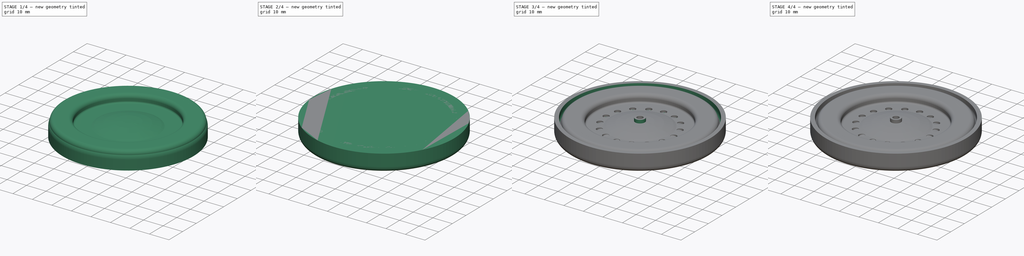
[diagram: build sequence overview — one tinted view per stage of 4, left to right]
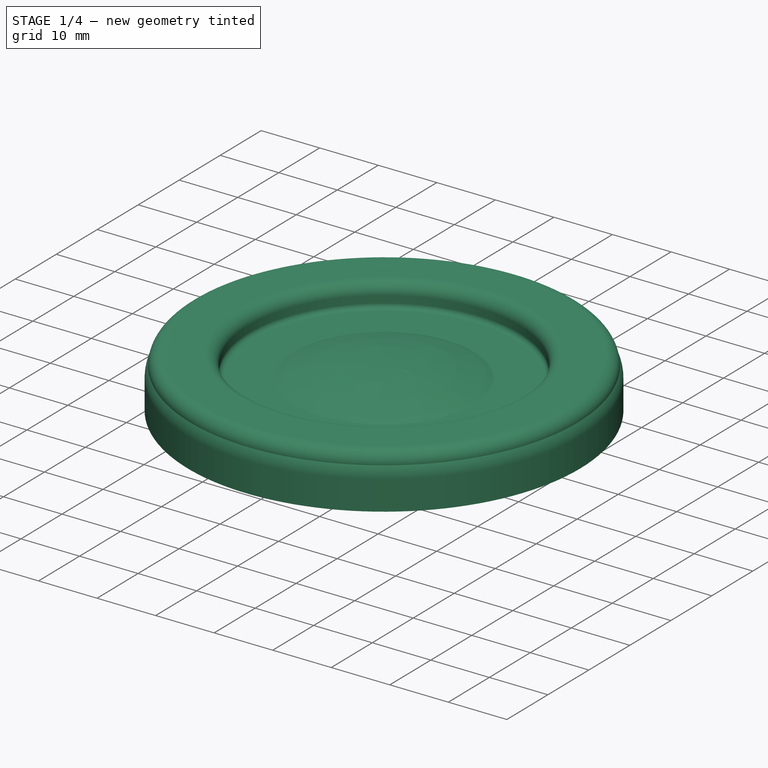
[diagram: stage 1 of 4 — iso view after this stage's code; geometry added in this stage tinted green]
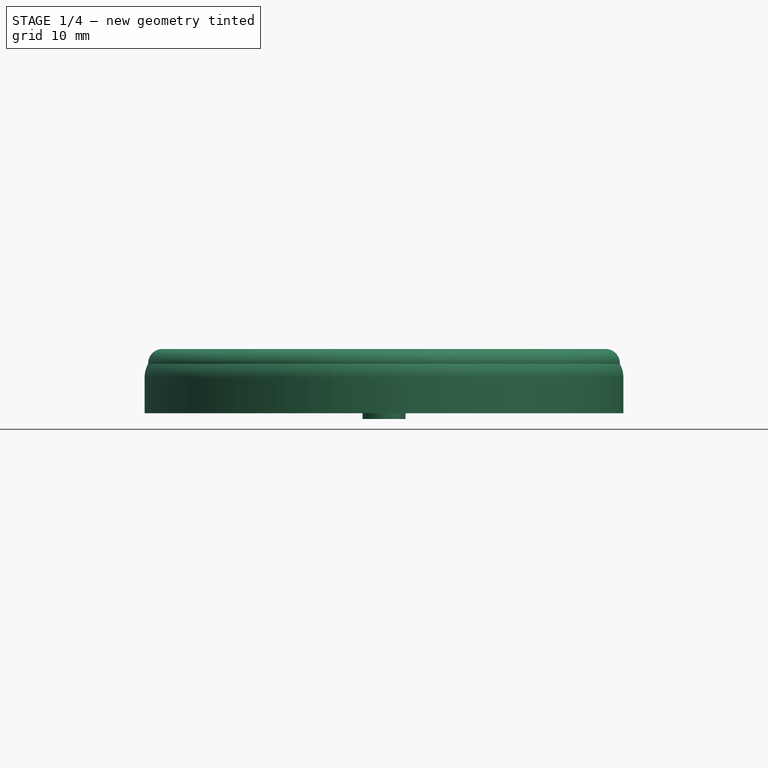
[diagram: stage 1 of 4 — front view after this stage's code; geometry added in this stage tinted green]
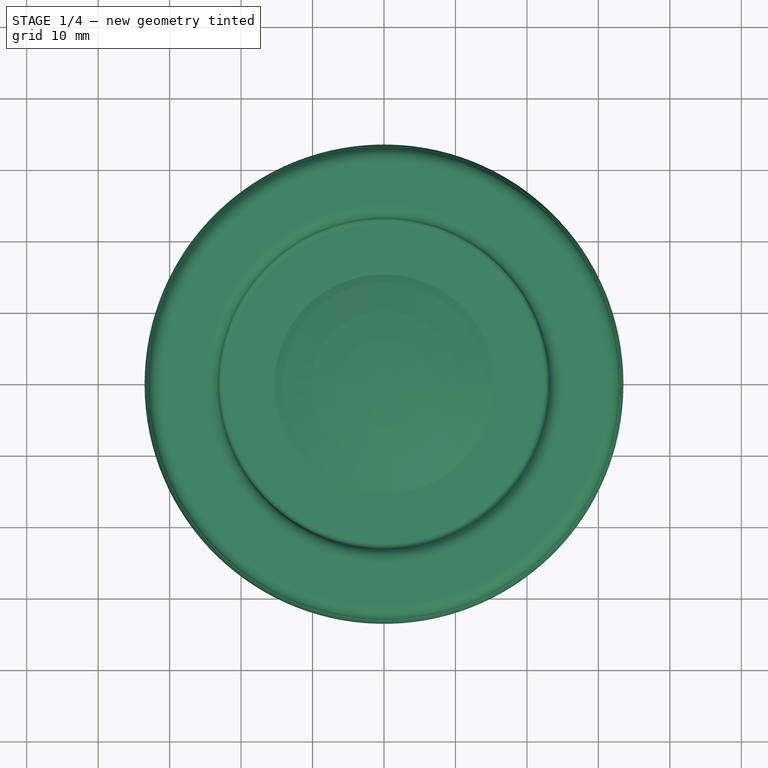
[diagram: stage 1 of 4 — top view after this stage's code; geometry added in this stage tinted green]
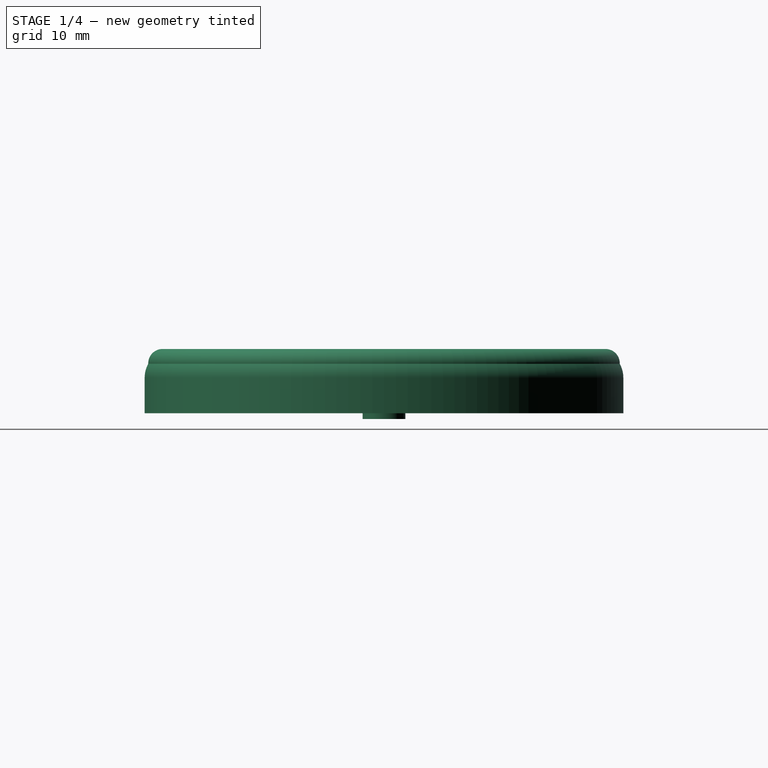
[diagram: stage 1 of 4 — right view after this stage's code; geometry added in this stage tinted green]
FCSTD DOCUMENT  (FreeCAD 0.22R37841 (Git))
Label: Rueda
License: All rights reserved
LicenseURL: http://en.wikipedia.org/wiki/All_rights_reserved
objects: Sketcher::SketchObject×10, PartDesign::Fillet×6, PartDesign::Pocket×4, PartDesign::Body×3, PartDesign::Revolution×2, PartDesign::Pad×1
note: 39 computed .brp shape members not serialized (recipe doc carries the construction recipe); baked Part::Feature solids carry a one-line shape summary decoded from their .brp

FEATURE [PartDesign::Body] Body
  AllowCompound = false
  Group = -> [Sketch,Sketch001,Pad,Fillet,Pocket,Fillet001,Sketch002,Pocket001,Fillet002,Sketch003,Sketch004,Pocket002,Fillet003,Fillet004]
  Origin = -> Origin
  Tip = -> Fillet004
FEATURE [Sketcher::SketchObject] Sketch005
  AttachmentSupport = -> [XY_Plane001]
  FullyConstrained = false
  MapMode = 5
  sketch-geometry (6):
    g0: Circle CenterX=0 CenterY=0 CenterZ=0 NormalX=0 NormalY=0 NormalZ=1 AngleXU=0 Radius=32.5
    g1: Circle CenterX=0 CenterY=0 CenterZ=0 NormalX=0 NormalY=0 NormalZ=1 AngleXU=0 Radius=33.5
    g2: Circle CenterX=0 CenterY=0 CenterZ=0 NormalX=0 NormalY=0 NormalZ=1 AngleXU=0 Radius=27.5
    g3: LineSegment StartX=0 StartY=-27.5 StartZ=0 EndX=0 EndY=-33.5 EndZ=0
    g4: Circle CenterX=0 CenterY=0 CenterZ=0 NormalX=0 NormalY=0 NormalZ=1 AngleXU=0 Radius=3
    g5: Circle CenterX=0 CenterY=0 CenterZ=0 NormalX=0 NormalY=0 NormalZ=1 AngleXU=0 Radius=1.5
  constraints (13):
    c: Diameter(g0) = 65
    c: Coincident(g0,g-1)
    c: Diameter(g1) = 67
    c: Coincident(g1,g0)
    c: Coincident(g2,g0)
    c: PointOnObject(g3,g1)
    c: Vertical(g3)
    c: PointOnObject(g3,g2)
    c: Distance(g3) = 6
    c: Diameter(g4) = 6
    c: Coincident(g4,g0)
    c: Diameter(g5) = 3
    c: Coincident(g5,g0)
FEATURE [Sketcher::SketchObject] Sketch006
  AttachmentSupport = -> [XY_Plane001]
  FullyConstrained = false
  MapMode = 5
  sketch-geometry (6):
    g0: Circle CenterX=0 CenterY=0 CenterZ=0 NormalX=0 NormalY=0 NormalZ=1 AngleXU=0 Radius=32.5
    g1: Circle CenterX=0 CenterY=0 CenterZ=0 NormalX=0 NormalY=0 NormalZ=1 AngleXU=0 Radius=33.5
    g2: Circle CenterX=0 CenterY=0 CenterZ=0 NormalX=0 NormalY=0 NormalZ=1 AngleXU=0 Radius=27.5
    g3: LineSegment StartX=0 StartY=-27.5 StartZ=0 EndX=0 EndY=-33.5 EndZ=0
    g4: Circle CenterX=0 CenterY=0 CenterZ=0 NormalX=0 NormalY=0 NormalZ=1 AngleXU=0 Radius=3
    g5: Circle CenterX=0 CenterY=0 CenterZ=0 NormalX=0 NormalY=0 NormalZ=1 AngleXU=0 Radius=1.5
  constraints (13):
    c: Diameter(g0) = 65
    c: Coincident(g0,g-1)
    c: Diameter(g1) = 67
    c: Coincident(g1,g0)
    c: Coincident(g2,g0)
    c: PointOnObject(g3,g1)
    c: Vertical(g3)
    c: PointOnObject(g3,g2)
    c: Distance(g3) = 6
    c: Diameter(g4) = 6
    c: Coincident(g4,g0)
    c: Diameter(g5) = 3
    c: Coincident(g5,g0)
FEATURE [Sketcher::SketchObject] Sketch007
  AttachmentSupport = -> [XZ_Plane001]
  FullyConstrained = false
  MapMode = 5
  Placement = pos=(0,0,0) rot=(1,0,0;1.5708rad)
  sketch-geometry (32):
    g0: LineSegment StartX=33.5 StartY=0 StartZ=0 EndX=33.5 EndY=4.98884 EndZ=0
    g1: LineSegment StartX=29.5 StartY=8.98884 StartZ=0 EndX=25.1149 EndY=8.98884 EndZ=0
    g2: ArcOfCircle CenterX=29.5 CenterY=4.98884 CenterZ=0 NormalX=0 NormalY=0 NormalZ=1 AngleXU=0 Radius=4 StartAngle=0 EndAngle=1.5708
    g3: GeomPoint X=33.5 Y=8.98884 Z=0
    g4: LineSegment StartX=23.1212 StartY=6.99513 StartZ=0 EndX=23.1212 EndY=5.79644 EndZ=0
    g5: LineSegment StartX=22.3136 StartY=4.98884 StartZ=0 EndX=8.42517 EndY=4.98884 EndZ=0
    g6: ArcOfCircle CenterX=25.1149 CenterY=6.99513 CenterZ=0 NormalX=0 NormalY=0 NormalZ=1 AngleXU=0 Radius=1.99371 StartAngle=1.5708 EndAngle=3.14159
    g7: GeomPoint X=23.1212 Y=8.98884 Z=0
    g8: ArcOfCircle CenterX=22.3136 CenterY=5.79644 CenterZ=0 NormalX=0 NormalY=0 NormalZ=1 AngleXU=0 Radius=0.807599 StartAngle=4.71239 EndAngle=6.28319
    g9: GeomPoint X=23.1212 Y=4.98884 Z=0
    g10: ArcOfCircle CenterX=0.0175288 CenterY=-10.1443 CenterZ=0 NormalX=0 NormalY=0 NormalZ=1 AngleXU=0 Radius=16.8274 StartAngle=1.17309 EndAngle=1.57184
    g11: ArcOfCircle CenterX=8.42517 CenterY=9.86936 CenterZ=0 NormalX=0 NormalY=0 NormalZ=1 AngleXU=0 Radius=4.88052 StartAngle=4.31468 EndAngle=4.71239
    g12: LineSegment StartX=31.4929 StartY=4.99887 StartZ=0 EndX=31.4929 EndY=4.97881 EndZ=0
    g13: LineSegment StartX=29.5 StartY=5 StartZ=0 EndX=30.9035 EndY=6.40383 EndZ=0
    g14: ArcOfCircle CenterX=29.5 CenterY=4.98884 CenterZ=0 NormalX=0 NormalY=0 NormalZ=1 AngleXU=0 Radius=1.99296 StartAngle=0.00503217 EndAngle=1.58229
    g15: LineSegment StartX=8.42518 StartY=3 StartZ=0 EndX=22.3086 EndY=2.99513 EndZ=0
    g16: ArcOfCircle CenterX=22.3136 CenterY=5.79644 CenterZ=0 NormalX=0 NormalY=0 NormalZ=1 AngleXU=0 Radius=2.80131 StartAngle=4.71061 EndAngle=6.28496
    g17: ArcOfCircle CenterX=25.7737 CenterY=6.32281 CenterZ=0 NormalX=0 NormalY=0 NormalZ=1 AngleXU=0 Radius=0.658857 StartAngle=1.5708 EndAngle=3.14159
    g18: ArcOfCircle CenterX=-1.3106 CenterY=-18.7527 CenterZ=0 NormalX=0 NormalY=0 NormalZ=1 AngleXU=0 Radius=23.4835 StartAngle=1.22997 EndAngle=1.3644
    g19: LineSegment StartX=31.4929 StartY=4.97881 StartZ=0 EndX=31.4929 EndY=0 EndZ=0
    g20: LineSegment StartX=31.4929 StartY=0 StartZ=0 EndX=33.5 EndY=0 EndZ=0
    g21: LineSegment StartX=29.4771 StartY=6.98167 StartZ=0 EndX=25.7737 EndY=6.98167 EndZ=0
    g22: LineSegment StartX=25.1149 StartY=6.32281 StartZ=0 EndX=25.1149 EndY=5.80141 EndZ=0
    g23: LineSegment StartX=-1.2e-15 StartY=4.19428 StartZ=0 EndX=-1.2e-15 EndY=6.68312 EndZ=0
    g24: ArcOfCircle CenterX=8.48909 CenterY=8.18652 CenterZ=0 NormalX=0 NormalY=0 NormalZ=1 AngleXU=0 Radius=5.18691 StartAngle=4.327 EndAngle=4.70007
    g25: ArcOfCircle CenterX=3.41659 CenterY=3.82472 CenterZ=0 NormalX=0 NormalY=0 NormalZ=1 AngleXU=0 Radius=0.416592 StartAngle=1.3644 EndAngle=3.14159
    g26: LineSegment StartX=-1.2e-15 StartY=4.19428 StartZ=0 EndX=1.50042 EndY=4.19428 EndZ=0
    g27: LineSegment StartX=3 StartY=3.82472 StartZ=0 EndX=3 EndY=-0.805717 EndZ=0
    g28: LineSegment StartX=1.50042 StartY=-0.805717 StartZ=0 EndX=3 EndY=-0.805717 EndZ=0
    g29: LineSegment StartX=1.50042 StartY=-0.805717 StartZ=0 EndX=1.50042 EndY=4.19428 EndZ=0
    g30: LineSegment StartX=33.5 StartY=4.98884 StartZ=0 EndX=33.5 EndY=11.9888 EndZ=0
    g31: LineSegment StartX=23.11 StartY=6.99513 StartZ=0 EndX=27.5 EndY=11.9961 EndZ=0
  constraints (59):
    c: Horizontal(g1)
    c: Vertical(g0)
    c: Distance(g0,g-1) = 33.5
    c: PointOnObject(g3,g1)
    c: PointOnObject(g3,g0)
    c: Tangent(g1,g2) = -1.5708
    c: Tangent(g0,g2) = -1.5708
    c: Radius(g2) = 4
    c: Distance(g9,g7) = 4
    c: Vertical(g4)
    c: Horizontal(g5)
    c: PointOnObject(g7,g1)
    c: PointOnObject(g7,g4)
    c: Tangent(g1,g6) = -1.5708
    c: Tangent(g4,g6) = -1.5708
    c: PointOnObject(g9,g4)
    c: PointOnObject(g9,g5)
    c: Tangent(g4,g8) = 1.5708
    c: Tangent(g5,g8) = 1.5708
    c: PointOnObject(g10,g-2)
    c: Tangent(g5,g11) = 1.5708
    c: Tangent(g10,g11) = 1.5708
    c: Vertical(g12)
    c: Coincident(g14,g2)
    c: PointOnObject(g13,g14)
    c: PointOnObject(g12,g14)
    c: Coincident(g16,g8)
    c: Coincident(g16,g15)
    c: Coincident(g12,g14)
    c: Coincident(g19,g12)
    c: PointOnObject(g19,g-1)
    c: Vertical(g19)
    c: Coincident(g20,g19)
    c: Coincident(g20,g0)
    c: Horizontal(g20)
    c: Coincident(g21,g14)
    c: Coincident(g21,g17)
    c: Horizontal(g21)
    c: Tangent(g22,g17) = -1.5708
    c: Coincident(g22,g16)
    c: Vertical(g22)
    c: Coincident(g23,g10)
    c: Vertical(g23)
    c: Coincident(g24,g18)
    c: Coincident(g24,g15)
    c: Tangent(g18,g25) = -1.5708
    c: Horizontal(g26)
    c: Coincident(g26,g23)
    c: Vertical(g27)
    c: Tangent(g27,g25) = -1.5708
    c: Coincident(g28,g27)
    c: Horizontal(g28)
    c: Coincident(g29,g28)
    c: Coincident(g29,g26)
    c: Vertical(g29)
    c: Distance(g30) = 7
    c: Vertical(g30)
    c: Coincident(g30,g0)
    c: Distance(g31,g30) = 6
FEATURE [PartDesign::Revolution] Revolution
  Angle = 360
  Angle2 = 60
  Axis = (0,2e-16,1)
  Base = (0,0,0)
  Placement = pos=(0,0,0) rot=(1,0,0;1.5708rad)
  Profile = -> Sketch007
  ReferenceAxis = -> Sketch007 [V_Axis]
  Reversed = true
  Suppressed = false
  Type = 0
FEATURE [PartDesign::Body] Body001
  AllowCompound = false
  Group = -> [Sketch005,Sketch006,Sketch007,Revolution,Sketch008,Pocket003]
  Origin = -> Origin001
  Tip = -> Pocket003
FEATURE [Sketcher::SketchObject] Sketch009
  AttachmentSupport = -> [XZ_Plane002]
  FullyConstrained = false
  MapMode = 5
  Placement = pos=(0,0,0) rot=(1,0,0;1.5708rad)
  sketch-geometry (46):
    g0: LineSegment StartX=0 StartY=0 StartZ=0 EndX=33 EndY=0 EndZ=0
    g1: LineSegment StartX=33 StartY=0 StartZ=0 EndX=33 EndY=9 EndZ=0
    g2: LineSegment StartX=0 StartY=9 StartZ=0 EndX=0 EndY=0 EndZ=0
    g3: LineSegment StartX=33 StartY=9 StartZ=0 EndX=27 EndY=9 EndZ=0
    g4: LineSegment StartX=27 StartY=9 StartZ=0 EndX=0 EndY=9 EndZ=0
    g5: LineSegment StartX=27 StartY=9 StartZ=0 EndX=27 EndY=4 EndZ=0
    g6: LineSegment StartX=27 StartY=4 StartZ=0 EndX=18 EndY=4 EndZ=0
    g7: LineSegment StartX=18 StartY=4 StartZ=0 EndX=0 EndY=4 EndZ=0
    g8: ArcOfCircle CenterX=1.4341 CenterY=-34.6972 CenterZ=0 NormalX=0 NormalY=0 NormalZ=1 AngleXU=0 Radius=42.0939 StartAngle=1.16631 EndAngle=1.60487
    g9: LineSegment StartX=27 StartY=4 StartZ=0 EndX=27 EndY=3 EndZ=0
    g10: LineSegment StartX=27 StartY=3 StartZ=0 EndX=28 EndY=3 EndZ=0
    g11: LineSegment StartX=28 StartY=3 StartZ=0 EndX=28 EndY=4 EndZ=0
    g12: LineSegment StartX=28 StartY=4 StartZ=0 EndX=27 EndY=4 EndZ=0
    g13: LineSegment StartX=27 StartY=9 StartZ=0 EndX=27 EndY=8 EndZ=0
    g14: LineSegment StartX=27 StartY=8 StartZ=0 EndX=28 EndY=8 EndZ=0
    g15: LineSegment StartX=28 StartY=8 StartZ=0 EndX=28 EndY=9 EndZ=0
    g16: LineSegment StartX=28 StartY=9 StartZ=0 EndX=27 EndY=9 EndZ=0
    g17: LineSegment StartX=33 StartY=9 StartZ=0 EndX=32 EndY=9 EndZ=0
    g18: LineSegment StartX=32 StartY=9 StartZ=0 EndX=32 EndY=8 EndZ=0
    g19: LineSegment StartX=32 StartY=8 StartZ=0 EndX=33 EndY=8 EndZ=0
    g20: LineSegment StartX=33 StartY=8 StartZ=0 EndX=33 EndY=9 EndZ=0
    g21: LineSegment StartX=33 StartY=0 StartZ=0 EndX=33 EndY=1 EndZ=0
    g22: LineSegment StartX=33 StartY=1 StartZ=0 EndX=32 EndY=1 EndZ=0
    g23: LineSegment StartX=32 StartY=1 StartZ=0 EndX=32 EndY=0 EndZ=0
    g24: LineSegment StartX=32 StartY=0 StartZ=0 EndX=33 EndY=0 EndZ=0
    g25: LineSegment StartX=0 StartY=7.37234 StartZ=0 EndX=0 EndY=6.37234 EndZ=0
    g26: LineSegment StartX=0 StartY=6.37234 StartZ=0 EndX=1 EndY=6.37234 EndZ=0
    g27: LineSegment StartX=1 StartY=6.37234 StartZ=0 EndX=1 EndY=7.37234 EndZ=0
    g28: LineSegment StartX=1 StartY=7.37234 StartZ=0 EndX=0 EndY=7.37234 EndZ=0
    g29: LineSegment StartX=18 StartY=4 StartZ=0 EndX=17 EndY=4 EndZ=0
    g30: LineSegment StartX=17 StartY=4 StartZ=0 EndX=17 EndY=3 EndZ=0
    g31: LineSegment StartX=17 StartY=3 StartZ=0 EndX=18 EndY=3 EndZ=0
    g32: LineSegment StartX=18 StartY=3 StartZ=0 EndX=18 EndY=4 EndZ=0
    g33: ArcOfCircle CenterX=0.729739 CenterY=-39.4567 CenterZ=0 NormalX=0 NormalY=0 NormalZ=1 AngleXU=0 Radius=45.8349 StartAngle=1.18446 EndAngle=1.45248
    g34: LineSegment StartX=18 StartY=3 StartZ=0 EndX=28 EndY=3 EndZ=0
    g35: LineSegment StartX=28 StartY=8 StartZ=0 EndX=28 EndY=3 EndZ=0
    g36: LineSegment StartX=28 StartY=8 StartZ=0 EndX=32 EndY=8 EndZ=0
    g37: LineSegment StartX=32 StartY=8 StartZ=0 EndX=32 EndY=0 EndZ=0
    g38: LineSegment StartX=32 StartY=0 StartZ=0 EndX=33 EndY=0 EndZ=0
    g39: LineSegment StartX=0 StartY=7.37234 StartZ=0 EndX=0 EndY=6.37234 EndZ=0
    g40: LineSegment StartX=1.5 StartY=6.37167 StartZ=0 EndX=1.5 EndY=0 EndZ=0
    g41: LineSegment StartX=0 StartY=1.94308 StartZ=0 EndX=3 EndY=1.94308 EndZ=0
    g42: LineSegment StartX=3 StartY=3.26877 StartZ=0 EndX=3 EndY=0 EndZ=0
    g43: LineSegment StartX=1.5 StartY=0 StartZ=0 EndX=3 EndY=0 EndZ=0
    g44: ArcOfCircle CenterX=0.729739 CenterY=-39.4567 CenterZ=0 NormalX=0 NormalY=0 NormalZ=1 AngleXU=0 Radius=45.8349 StartAngle=1.55399 EndAngle=1.58672
    g45: ArcOfCircle CenterX=5.80857 CenterY=3.26877 CenterZ=0 NormalX=0 NormalY=0 NormalZ=1 AngleXU=0 Radius=2.80857 StartAngle=1.45248 EndAngle=3.14159
  constraints (118):
    c: Coincident(g0,g1)
    c: Coincident(g1,g3)
    c: Coincident(g4,g2)
    c: Coincident(g2,g0)
    c: Horizontal(g0)
    c: Vertical(g1)
    c: Vertical(g2)
    c: Distance(g1,g2) = 33
    c: Distance(g0,g4) = 9
    c: Coincident(g0,g-1)
    c: Coincident(g3,g4)
    c: Horizontal(g3)
    c: Horizontal(g4)
    c: Distance(g3) = 6
    c: Distance(g5) = 5
    c: Coincident(g5,g3)
    c: Vertical(g5)
    c: Coincident(g6,g5)
    c: PointOnObject(g7,g2)
    c: Coincident(g6,g7)
    c: Horizontal(g6)
    c: Horizontal(g7)
    c: Distance(g6) = 9
    c: Coincident(g8,g6)
    c: PointOnObject(g8,g2)
    c: Coincident(g9,g10)
    c: Coincident(g10,g11)
    c: Coincident(g11,g12)
    c: Coincident(g12,g9)
    c: Vertical(g9)
    c: Vertical(g11)
    c: Horizontal(g10)
    c: Horizontal(g12)
    c: Distance(g9,g11) = 1
    c: Distance(g10,g12) = 1
    c: Coincident(g9,g5)
    c: Coincident(g13,g14)
    c: Coincident(g14,g15)
    c: Coincident(g15,g16)
    c: Coincident(g16,g13)
    c: Vertical(g13)
    c: Vertical(g15)
    c: Horizontal(g14)
    c: Horizontal(g16)
    c: Distance(g13,g15) = 1
    c: Distance(g14,g16) = 1
    c: Coincident(g13,g3)
    c: Coincident(g17,g18)
    c: Coincident(g18,g19)
    c: Coincident(g19,g20)
    c: Coincident(g20,g17)
    c: Horizontal(g17)
    c: Horizontal(g19)
    c: Vertical(g18)
    c: Vertical(g20)
    c: Distance(g18,g20) = 1
    c: Distance(g17,g19) = 1
    c: Coincident(g17,g1)
    c: Coincident(g21,g22)
    c: Coincident(g22,g23)
    c: Coincident(g23,g24)
    c: Coincident(g24,g21)
    c: Vertical(g21)
    c: Vertical(g23)
    c: Horizontal(g22)
    c: Horizontal(g24)
    c: Distance(g21,g23) = 1
    c: Distance(g22,g24) = 1
    c: Coincident(g21,g0)
    c: Coincident(g25,g26)
    c: Coincident(g26,g27)
    c: Coincident(g27,g28)
    c: Coincident(g28,g25)
    c: Vertical(g25)
    c: Vertical(g27)
    c: Horizontal(g26)
    c: Horizontal(g28)
    c: Distance(g25,g27) = 1
    c: Distance(g26,g28) = 1
    c: Coincident(g25,g8)
    c: Coincident(g29,g30)
    c: Coincident(g30,g31)
    c: Coincident(g31,g32)
    c: Coincident(g32,g29)
    c: Horizontal(g29)
    c: Horizontal(g31)
    c: Vertical(g30)
    c: Vertical(g32)
    c: Distance(g30,g32) = 1
    c: Distance(g29,g31) = 1
    c: Coincident(g29,g6)
    c: Coincident(g44,g25)
    c: Coincident(g33,g31)
    c: Coincident(g34,g31)
    c: Coincident(g34,g10)
    c: Coincident(g35,g14)
    c: Coincident(g35,g10)
    c: Coincident(g36,g14)
    c: Coincident(g36,g18)
    c: Coincident(g37,g18)
    c: Coincident(g37,g23)
    c: Coincident(g38,g23)
    c: Coincident(g38,g0)
    c: Coincident(g39,g8)
    c: Coincident(g39,g25)
    c: PointOnObject(g40,g0)
    c: Distance(g41) = 3
    c: Horizontal(g41)
    c: PointOnObject(g41,g2)
    c: Vertical(g42)
    c: PointOnObject(g42,g0)
    c: Coincident(g43,g40)
    c: Coincident(g43,g42)
    c: Equal(g33,g44)
    c: Coincident(g44,g40)
    c: Coincident(g33,g44)
    c: Tangent(g33,g45) = -1.5708
    c: Tangent(g42,g45) = -1.5708
FEATURE [PartDesign::Revolution] Revolution001
  Angle = 360
  Angle2 = 60
  Axis = (0,2e-16,1)
  Base = (0,0,0)
  Placement = pos=(0,0,0) rot=(1,0,0;1.5708rad)
  Profile = -> Sketch009
  ReferenceAxis = -> Sketch009 [V_Axis]
  Reversed = true
  Suppressed = false
  Type = 0
FEATURE [PartDesign::Fillet] Fillet005
  Base = -> Revolution001 [Edge8,Edge6]
  BaseFeature = -> Revolution001
  Placement = pos=(0,0,0) rot=(1,0,0;1.5708rad)
  Radius = 2
  SupportTransform = false
  Suppressed = false
  UseAllEdges = false
FEATURE [PartDesign::Body] Body002
  AllowCompound = false
  Group = -> [Sketch009,Revolution001,Fillet005]
  Origin = -> Origin002
  Tip = -> Fillet005
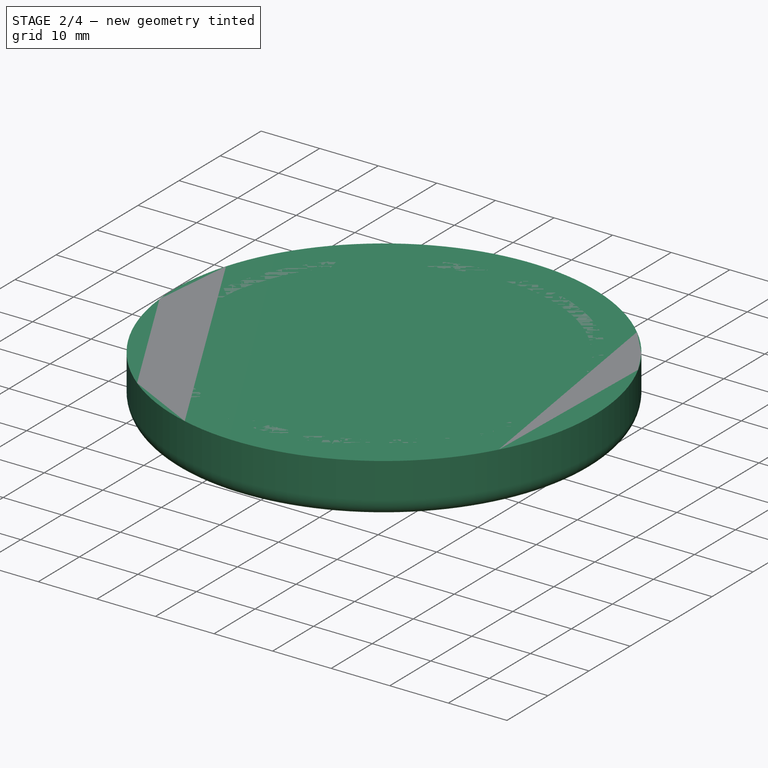
[diagram: stage 2 of 4 — iso view after this stage's code; geometry added in this stage tinted green]
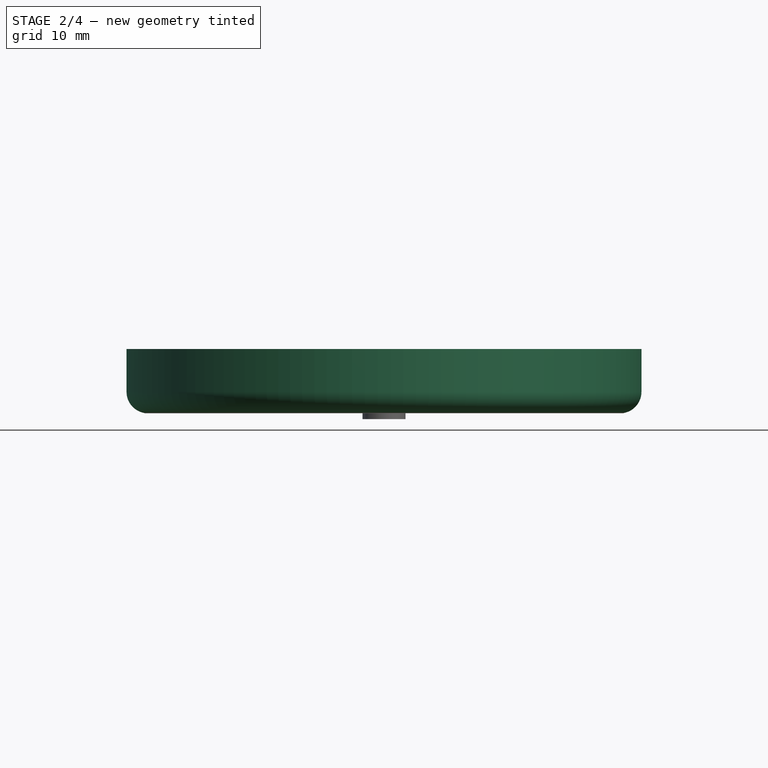
[diagram: stage 2 of 4 — front view after this stage's code; geometry added in this stage tinted green]
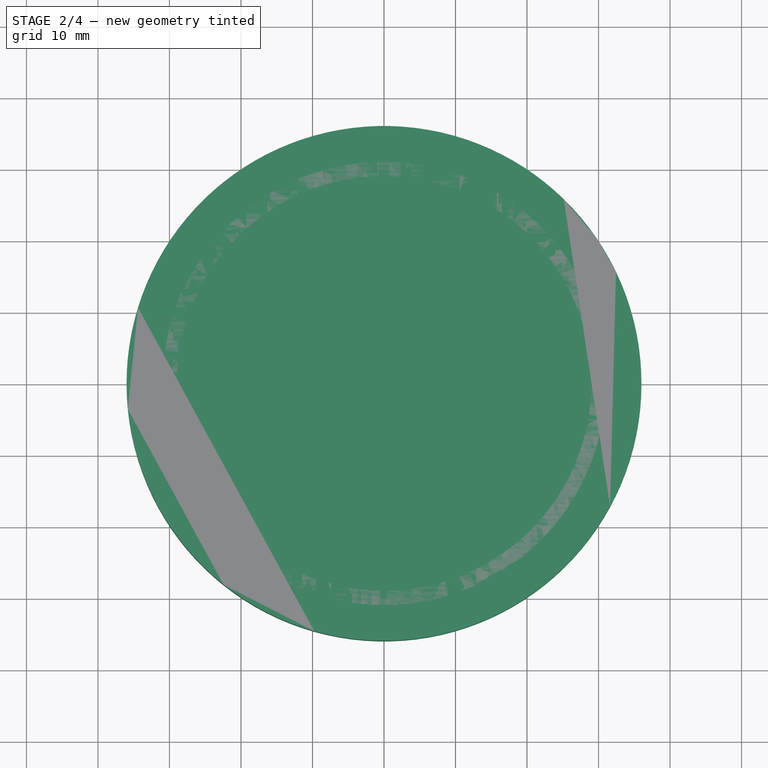
[diagram: stage 2 of 4 — top view after this stage's code; geometry added in this stage tinted green]
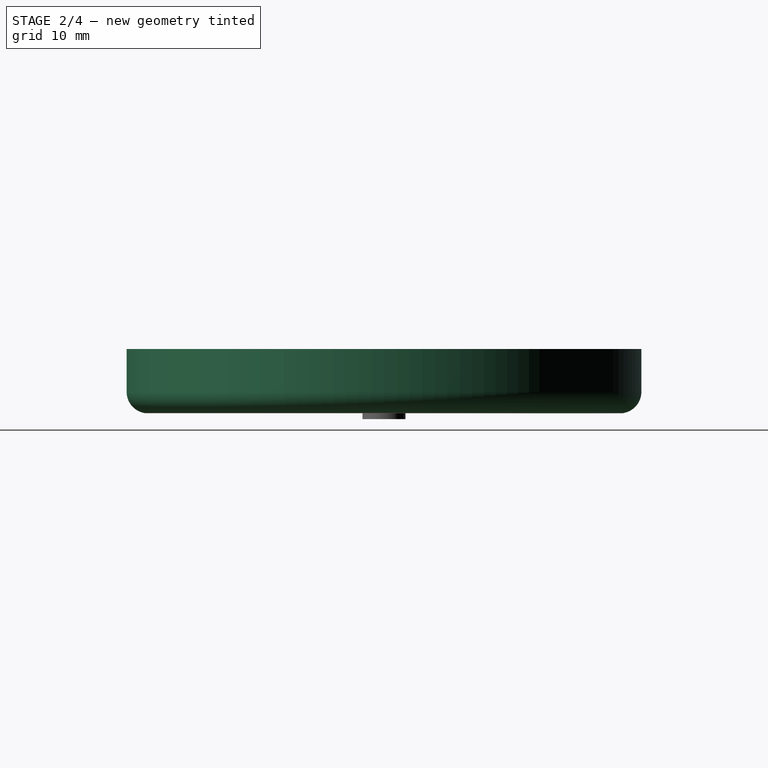
[diagram: stage 2 of 4 — right view after this stage's code; geometry added in this stage tinted green]
FEATURE [Sketcher::SketchObject] Sketch
  AttachmentSupport = -> [XY_Plane]
  FullyConstrained = true
  MapMode = 5
  sketch-geometry (4):
    g0: Circle CenterX=0 CenterY=0 CenterZ=0 NormalX=0 NormalY=0 NormalZ=1 AngleXU=0 Radius=34
    g1: Circle CenterX=0 CenterY=0 CenterZ=0 NormalX=0 NormalY=0 NormalZ=1 AngleXU=0 Radius=1.5
    g2: Circle CenterX=0 CenterY=0 CenterZ=0 NormalX=0 NormalY=0 NormalZ=1 AngleXU=0 Radius=36
    g3: Circle CenterX=0 CenterY=0 CenterZ=0 NormalX=0 NormalY=0 NormalZ=1 AngleXU=0 Radius=2.5
  constraints (8):
    c: Coincident(g0,g-1)
    c: Radius(g0) = 34
    c: Diameter(g1) = 3
    c: Coincident(g1,g0)
    c: Coincident(g2,g0)
    c: Radius(g2) = 36
    c: Diameter(g3) = 5
    c: Coincident(g3,g0)
FEATURE [PartDesign::Pad] Pad
  Direction = (0,0,1)
  Length = 9
  Length2 = 10
  Profile = -> Sketch
  ReferenceAxis = -> Sketch [N_Axis]
  Suppressed = false
  Type = 0
FEATURE [PartDesign::Fillet] Fillet
  Base = -> Pad [Edge2]
  BaseFeature = -> Pad
  Radius = 3
  SupportTransform = false
  Suppressed = false
  UseAllEdges = false
FEATURE [Sketcher::SketchObject] Sketch008
  AttachmentSupport = -> [Revolution]
  FullyConstrained = false
  MapMode = 5
  Placement = pos=(0,-2e-16,-0.805717) rot=(1,0,0;3.14159rad)
  sketch-geometry (29):
    g0: Circle CenterX=0 CenterY=0 CenterZ=0 NormalX=0 NormalY=0 NormalZ=1 AngleXU=0 Radius=8.36795
    g1: Circle CenterX=0 CenterY=0 CenterZ=0 NormalX=0 NormalY=0 NormalZ=1 AngleXU=0 Radius=22.2635
    g2: LineSegment StartX=0 StartY=0 StartZ=0 EndX=31.8198 EndY=31.8198 EndZ=0
    g3: LineSegment StartX=0 StartY=0 StartZ=0 EndX=11.4805 EndY=27.7164 EndZ=0
    g4: LineSegment StartX=-1.06462e-05 StartY=7.72459e-06 StartZ=0 EndX=17.2208 EndY=41.5746 EndZ=0
    g5: LineSegment StartX=-1.06462e-05 StartY=7.72459e-06 StartZ=0 EndX=36.9552 EndY=15.3073 EndZ=0
    g6: Circle CenterX=0 CenterY=0 CenterZ=0 NormalX=0 NormalY=0 NormalZ=1 AngleXU=0 Radius=17.2838
    g7: Circle CenterX=6.5432 CenterY=15.7967 CenterZ=0 NormalX=0 NormalY=0 NormalZ=1 AngleXU=0 Radius=1.5
    g8: Circle CenterX=12.2575 CenterY=12.1853 CenterZ=0 NormalX=0 NormalY=0 NormalZ=1 AngleXU=0 Radius=1.5
    g9: Circle CenterX=16.0212 CenterY=6.48468 CenterZ=0 NormalX=0 NormalY=0 NormalZ=1 AngleXU=0 Radius=1.5
    g10: ArcOfCircle CenterX=0.022531 CenterY=17.2838 CenterZ=0 NormalX=0 NormalY=0 NormalZ=1 AngleXU=0 Radius=1.5 StartAngle=4.69737 EndAngle=7.869
    g11: LineSegment StartX=0 StartY=0 StartZ=0 EndX=0 EndY=24.0807 EndZ=0
    g12: LineSegment StartX=0 StartY=0 StartZ=0 EndX=22.9237 EndY=0 EndZ=0
    g13: ArcOfCircle CenterX=17.3302 CenterY=0 CenterZ=0 NormalX=0 NormalY=0 NormalZ=1 AngleXU=0 Radius=1.5 StartAngle=0 EndAngle=3.14159
    g14: ArcOfCircle CenterX=-0.022531 CenterY=17.2838 CenterZ=0 NormalX=0 NormalY=0 NormalZ=1 AngleXU=0 Radius=1.5 StartAngle=1.55578 EndAngle=4.72741
    g15: Circle CenterX=-6.5432 CenterY=15.7967 CenterZ=0 NormalX=0 NormalY=0 NormalZ=1 AngleXU=0 Radius=1.5
    g16: Circle CenterX=-12.2575 CenterY=12.1853 CenterZ=0 NormalX=0 NormalY=0 NormalZ=1 AngleXU=0 Radius=1.5
    g17: Circle CenterX=-16.0212 CenterY=6.48468 CenterZ=0 NormalX=0 NormalY=0 NormalZ=1 AngleXU=0 Radius=1.5
    g18: ArcOfCircle CenterX=-17.3302 CenterY=0 CenterZ=0 NormalX=0 NormalY=0 NormalZ=1 AngleXU=0 Radius=1.5 StartAngle=1e-16 EndAngle=3.14159
    g19: ArcOfCircle CenterX=-17.3302 CenterY=0 CenterZ=0 NormalX=0 NormalY=0 NormalZ=1 AngleXU=0 Radius=1.5 StartAngle=3.14159 EndAngle=6.28319
    g20: Circle CenterX=-16.0212 CenterY=-6.48468 CenterZ=0 NormalX=0 NormalY=0 NormalZ=1 AngleXU=0 Radius=1.5
    g21: Circle CenterX=-12.2575 CenterY=-12.1853 CenterZ=0 NormalX=0 NormalY=0 NormalZ=1 AngleXU=0 Radius=1.5
    g22: Circle CenterX=-6.5432 CenterY=-15.7967 CenterZ=0 NormalX=0 NormalY=0 NormalZ=1 AngleXU=0 Radius=1.5
    g23: ArcOfCircle CenterX=-0.022531 CenterY=-17.2838 CenterZ=0 NormalX=0 NormalY=0 NormalZ=1 AngleXU=0 Radius=1.5 StartAngle=1.55578 EndAngle=4.72741
    g24: ArcOfCircle CenterX=0.022531 CenterY=-17.2838 CenterZ=0 NormalX=0 NormalY=0 NormalZ=1 AngleXU=0 Radius=1.5 StartAngle=4.69737 EndAngle=7.869
    g25: Circle CenterX=6.5432 CenterY=-15.7967 CenterZ=0 NormalX=0 NormalY=0 NormalZ=1 AngleXU=0 Radius=1.5
    g26: Circle CenterX=12.2575 CenterY=-12.1853 CenterZ=0 NormalX=0 NormalY=0 NormalZ=1 AngleXU=0 Radius=1.5
    g27: Circle CenterX=16.0212 CenterY=-6.48468 CenterZ=0 NormalX=0 NormalY=0 NormalZ=1 AngleXU=0 Radius=1.5
    g28: ArcOfCircle CenterX=17.3302 CenterY=0 CenterZ=0 NormalX=0 NormalY=0 NormalZ=1 AngleXU=0 Radius=1.5 StartAngle=3.14159 EndAngle=6.28319
  constraints (47):
    c: Coincident(g0,g-1)
    c: Coincident(g1,g0)
    c: Distance(g2) = 45
    c: Angle(g-1,g2) = 0.785398
    c: Coincident(g2,g0)
    c: Distance(g3) = 30
    c: Angle(g-1,g3) = 1.1781
    c: Coincident(g3,g0)
    c: Distance(g4) = 45
    c: Angle(g-1,g4) = 1.1781
    c: Distance(g5) = 40
    c: Angle(g-1,g5) = 0.392699
    c: Coincident(g5,g4)
    c: Coincident(g6,g0)
    c: Diameter(g7) = 3
    c: PointOnObject(g7,g3)
    c: Diameter(g8) = 3
    c: PointOnObject(g8,g6)
    c: Diameter(g9) = 3
    c: PointOnObject(g9,g6)
    c: Diameter(g10) = 3
    c: PointOnObject(g10,g6)
    c: Coincident(g11,g0)
    c: PointOnObject(g11,g-2)
    c: Coincident(g12,g0)
    c: PointOnObject(g12,g-1)
    c: Diameter(g13) = 3
    c: PointOnObject(g13,g12)
    c: PointOnObject(g13,g12)
    c: PointOnObject(g13,g12)
    c: PointOnObject(g10,g11)
    c: PointOnObject(g10,g11)
    c: Diameter(g15) = 3
    c: Diameter(g16) = 3
    c: Diameter(g17) = 3
    c: Diameter(g14) = 3
    c: Diameter(g18) = 3
    c: Diameter(g25) = 3
    c: Diameter(g26) = 3
    c: Diameter(g27) = 3
    c: Diameter(g24) = 3
    c: Diameter(g28) = 3
    c: Diameter(g22) = 3
    c: Diameter(g21) = 3
    c: Diameter(g20) = 3
    c: Diameter(g23) = 3
    c: Diameter(g19) = 3
FEATURE [PartDesign::Pocket] Pocket003
  BaseFeature = -> Revolution
  Direction = (0,0,1)
  Length = 5
  Length2 = 5
  Placement = pos=(0,0,0) rot=(1,0,0;1.5708rad)
  Profile = -> Sketch008
  ReferenceAxis = -> Sketch008 [N_Axis]
  Suppressed = false
  Type = 1
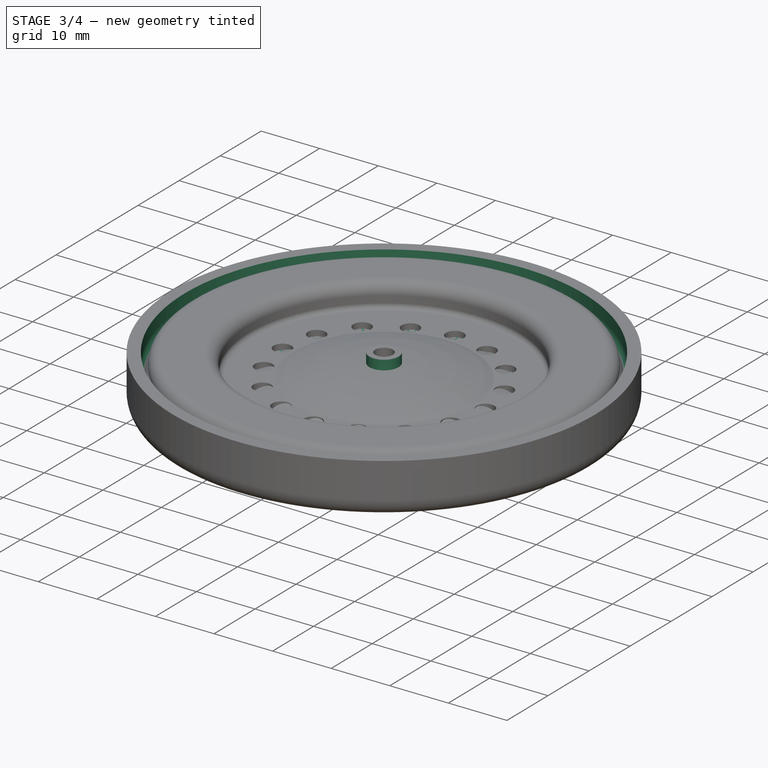
[diagram: stage 3 of 4 — iso view after this stage's code; geometry added in this stage tinted green]
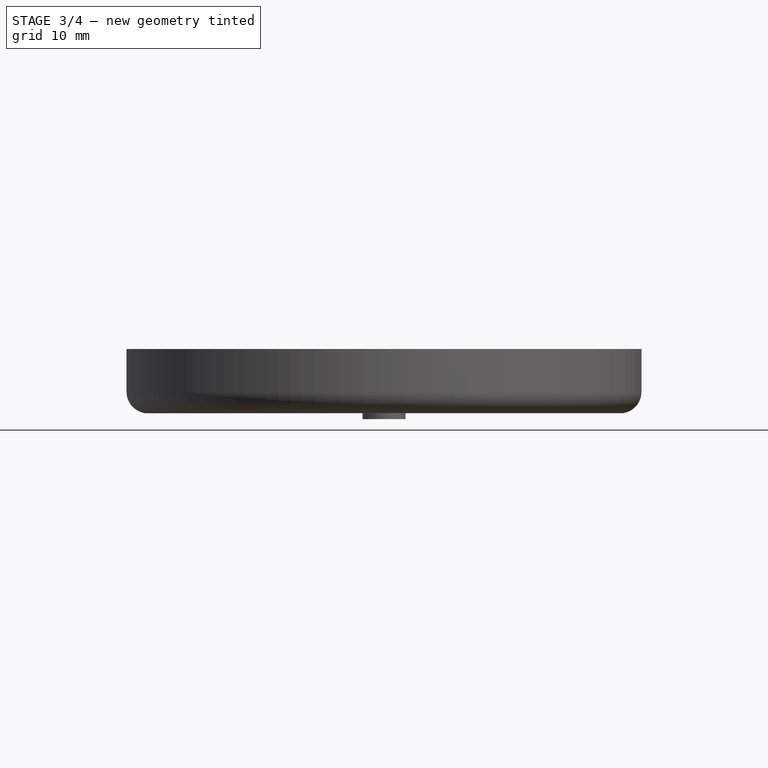
[diagram: stage 3 of 4 — front view after this stage's code; geometry added in this stage tinted green]
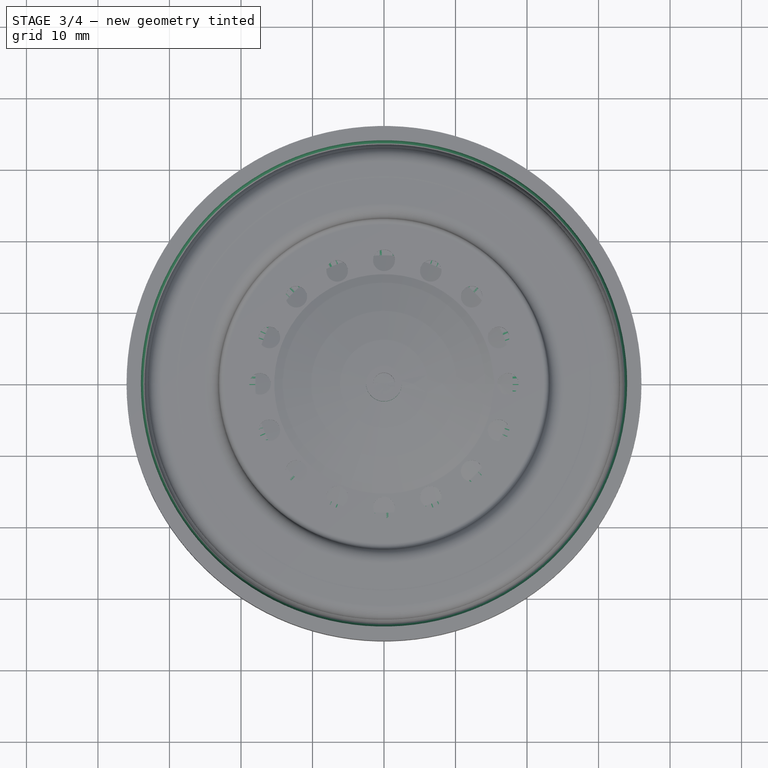
[diagram: stage 3 of 4 — top view after this stage's code; geometry added in this stage tinted green]
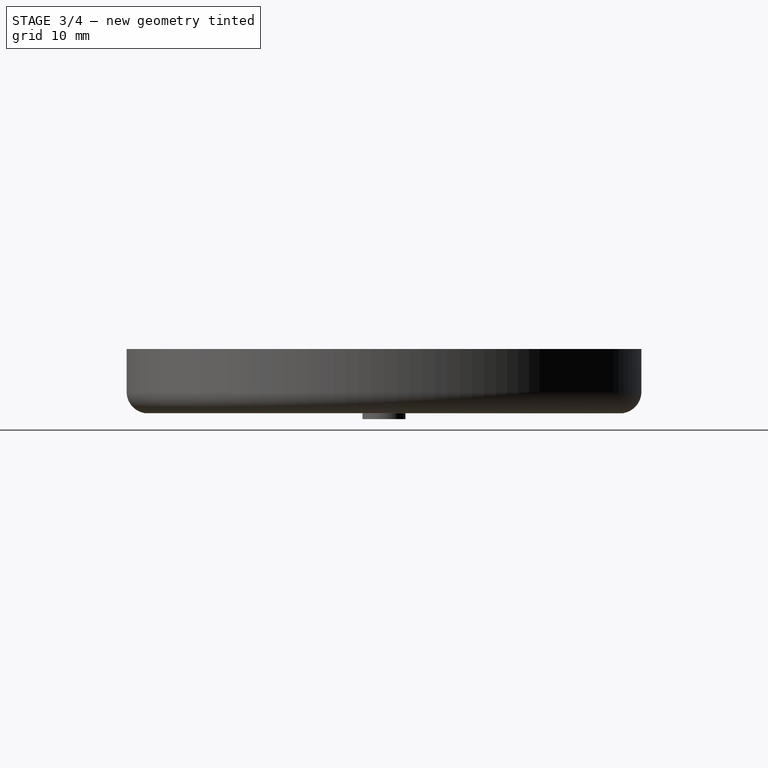
[diagram: stage 3 of 4 — right view after this stage's code; geometry added in this stage tinted green]
FEATURE [Sketcher::SketchObject] Sketch001
  AttachmentSupport = -> [Fillet]
  FullyConstrained = true
  MapMode = 5
  Placement = pos=(0,0,9) rot=(0,0,1;0rad)
  sketch-geometry (4):
    g0: Circle CenterX=0 CenterY=0 CenterZ=0 NormalX=0 NormalY=0 NormalZ=1 AngleXU=0 Radius=34
    g1: Circle CenterX=0 CenterY=0 CenterZ=0 NormalX=0 NormalY=0 NormalZ=1 AngleXU=0 Radius=1.5
    g2: Circle CenterX=0 CenterY=0 CenterZ=0 NormalX=0 NormalY=0 NormalZ=1 AngleXU=0 Radius=36
    g3: Circle CenterX=0 CenterY=0 CenterZ=0 NormalX=0 NormalY=0 NormalZ=1 AngleXU=0 Radius=2.5
  constraints (8):
    c: Coincident(g0,g-1)
    c: Radius(g0) = 34
    c: Diameter(g1) = 3
    c: Coincident(g1,g0)
    c: Coincident(g2,g0)
    c: Radius(g2) = 36
    c: Diameter(g3) = 5
    c: Coincident(g3,g0)
FEATURE [PartDesign::Pocket] Pocket
  BaseFeature = -> Fillet
  Direction = (0,0,-1)
  Length = 5
  Length2 = 5
  Profile = -> Sketch001
  ReferenceAxis = -> Sketch001 [N_Axis]
  Suppressed = false
  Type = 0
FEATURE [PartDesign::Fillet] Fillet001
  Base = -> Pocket [Edge8]
  BaseFeature = -> Pocket
  Radius = 3
  SupportTransform = false
  Suppressed = false
  UseAllEdges = false
FEATURE [Sketcher::SketchObject] Sketch002
  AttachmentSupport = -> [Fillet001]
  FullyConstrained = true
  MapMode = 5
  Placement = pos=(0,0,9) rot=(0,0,1;0rad)
  sketch-geometry (4):
    g0: Circle CenterX=0 CenterY=0 CenterZ=0 NormalX=0 NormalY=0 NormalZ=1 AngleXU=0 Radius=34
    g1: Circle CenterX=0 CenterY=0 CenterZ=0 NormalX=0 NormalY=0 NormalZ=1 AngleXU=0 Radius=1.5
    g2: Circle CenterX=0 CenterY=0 CenterZ=0 NormalX=0 NormalY=0 NormalZ=1 AngleXU=0 Radius=36
    g3: Circle CenterX=0 CenterY=0 CenterZ=0 NormalX=0 NormalY=0 NormalZ=1 AngleXU=0 Radius=2.5
  constraints (8):
    c: Coincident(g0,g-1)
    c: Radius(g0) = 34
    c: Diameter(g1) = 3
    c: Coincident(g1,g0)
    c: Coincident(g2,g0)
    c: Radius(g2) = 36
    c: Diameter(g3) = 5
    c: Coincident(g3,g0)
FEATURE [PartDesign::Pocket] Pocket001
  BaseFeature = -> Fillet001
  Direction = (0,0,-1)
  Length = 5
  Length2 = 5
  Profile = -> Sketch002
  ReferenceAxis = -> Sketch002 [N_Axis]
  Suppressed = false
  Type = 0
FEATURE [PartDesign::Fillet] Fillet002
  Base = -> Pocket001 [Edge7]
  BaseFeature = -> Pocket001
  Radius = 3
  SupportTransform = false
  Suppressed = false
  UseAllEdges = false
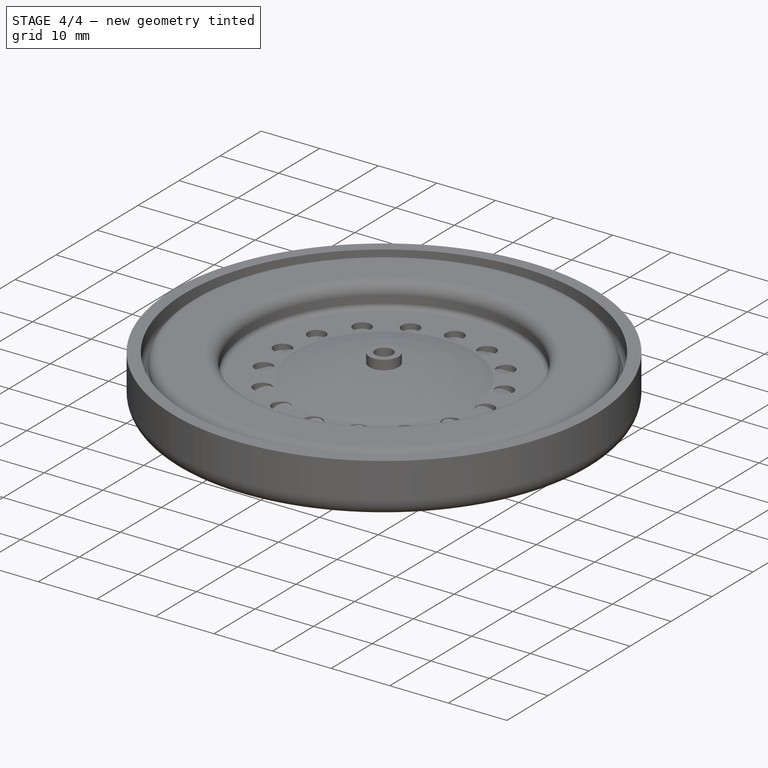
[diagram: stage 4 of 4 — iso view after this stage's code; geometry added in this stage tinted green]
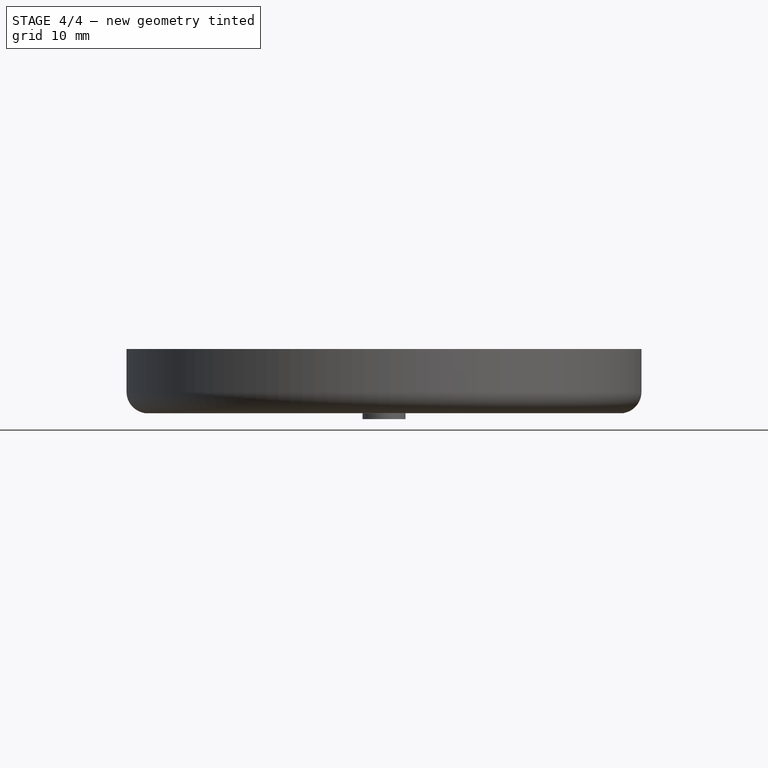
[diagram: stage 4 of 4 — front view after this stage's code; geometry added in this stage tinted green]
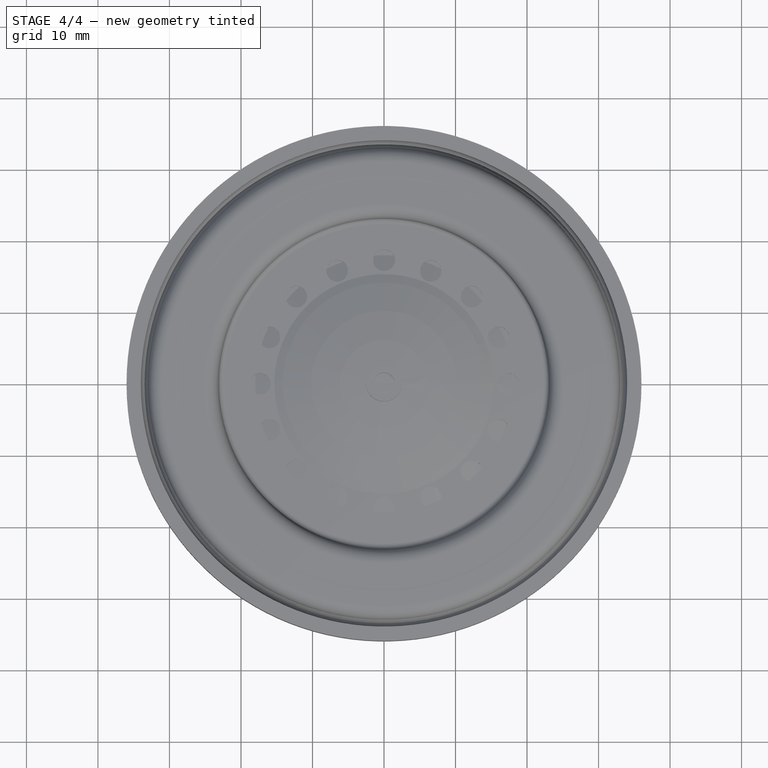
[diagram: stage 4 of 4 — top view after this stage's code; geometry added in this stage tinted green]
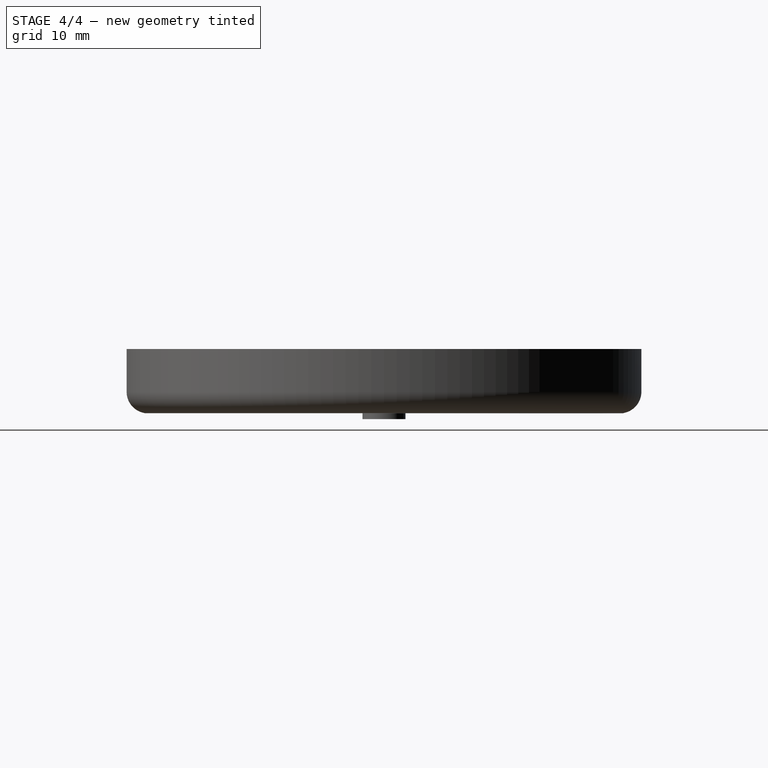
[diagram: stage 4 of 4 — right view after this stage's code; geometry added in this stage tinted green]
FEATURE [Sketcher::SketchObject] Sketch003
  AttachmentSupport = -> [Fillet002]
  FullyConstrained = false
  MapMode = 5
  Placement = pos=(0,0,4) rot=(0,0,1;0rad)
  sketch-geometry (16):
    g0: Circle CenterX=0 CenterY=0 CenterZ=0 NormalX=0 NormalY=0 NormalZ=1 AngleXU=0 Radius=34
    g1: Circle CenterX=0 CenterY=0 CenterZ=0 NormalX=0 NormalY=0 NormalZ=1 AngleXU=0 Radius=1.5
    g2: Circle CenterX=0 CenterY=0 CenterZ=0 NormalX=0 NormalY=0 NormalZ=1 AngleXU=0 Radius=36
    g3: Circle CenterX=0 CenterY=0 CenterZ=0 NormalX=0 NormalY=0 NormalZ=1 AngleXU=0 Radius=2.5
    g4: Circle CenterX=0 CenterY=22 CenterZ=0 NormalX=0 NormalY=0 NormalZ=1 AngleXU=0 Radius=5
    g5: Circle CenterX=-22 CenterY=0 CenterZ=0 NormalX=0 NormalY=0 NormalZ=1 AngleXU=0 Radius=5
    g6: Circle CenterX=22 CenterY=0 CenterZ=0 NormalX=0 NormalY=0 NormalZ=1 AngleXU=0 Radius=5
    g7: Circle CenterX=0 CenterY=-22 CenterZ=0 NormalX=0 NormalY=0 NormalZ=1 AngleXU=0 Radius=5
    g8: LineSegment StartX=0 StartY=0 StartZ=0 EndX=-37.2732 EndY=37.2733 EndZ=0
    g9: LineSegment StartX=0 StartY=0 StartZ=0 EndX=35.3553 EndY=-35.3553 EndZ=0
    g10: LineSegment StartX=0 StartY=0 StartZ=0 EndX=35.3553 EndY=35.3553 EndZ=0
    g11: LineSegment StartX=0 StartY=0 StartZ=0 EndX=-35.3553 EndY=-35.3554 EndZ=0
    g12: Circle CenterX=10.6066 CenterY=10.6066 CenterZ=0 NormalX=0 NormalY=0 NormalZ=1 AngleXU=0 Radius=6
    g13: Circle CenterX=-10.6066 CenterY=-10.6066 CenterZ=0 NormalX=0 NormalY=0 NormalZ=1 AngleXU=0 Radius=6
    g14: Circle CenterX=-10.6066 CenterY=10.6066 CenterZ=0 NormalX=0 NormalY=0 NormalZ=1 AngleXU=0 Radius=6
    g15: Circle CenterX=10.6066 CenterY=-10.6066 CenterZ=0 NormalX=0 NormalY=0 NormalZ=1 AngleXU=0 Radius=6
  constraints (43):
    c: Coincident(g0,g-1)
    c: Radius(g0) = 34
    c: Diameter(g1) = 3
    c: Coincident(g1,g0)
    c: Coincident(g2,g0)
    c: Radius(g2) = 36
    c: Diameter(g3) = 5
    c: Coincident(g3,g0)
    c: PointOnObject(g4,g-2)
    c: Distance(g0,g4) = 22
    c: PointOnObject(g5,g-1)
    c: Radius(g4) = 5
    c: Radius(g5) = 5
    c: Distance(g5,g0) = 22
    c: PointOnObject(g6,g-1)
    c: Distance(g6,g0) = 22
    c: Radius(g6) = 5
    c: PointOnObject(g7,g-2)
    c: Radius(g7) = 5
    c: Distance(g7,g0) = 22
    c: Angle(g-1,g8) = 2.35619
    c: Coincident(g8,g0)
    c: Distance(g9) = 50
    c: Angle(g-1,g9) = -0.785398
    c: Coincident(g9,g0)
    c: Distance(g10) = 50
    c: Angle(g-1,g10) = 0.785398
    c: Coincident(g10,g0)
    c: Distance(g11) = 50
    c: Angle(g-1,g11) = -2.35619
    c: Coincident(g11,g0)
    c: PointOnObject(g12,g10)
    c: Radius(g12) = 6
    c: Distance(g0,g12) = 15
    c: PointOnObject(g13,g11)
    c: Distance(g0,g13) = 15
    c: Radius(g13) = 6
    c: PointOnObject(g14,g8)
    c: Radius(g14) = 6
    c: Distance(g0,g14) = 15
    c: PointOnObject(g15,g9)
    c: Radius(g15) = 6
    c: Distance(g15,g0) = 15
FEATURE [Sketcher::SketchObject] Sketch004
  AttachmentSupport = -> [Fillet002]
  ExternalGeometry = -> [Fillet002]
  FullyConstrained = false
  MapMode = 5
  Placement = pos=(0,0,0) rot=(1,0,0;3.14159rad)
  sketch-geometry (2):
    g0: Circle CenterX=0 CenterY=0 CenterZ=0 NormalX=0 NormalY=0 NormalZ=1 AngleXU=0 Radius=33
    g1: Circle CenterX=0 CenterY=0 CenterZ=0 NormalX=0 NormalY=0 NormalZ=1 AngleXU=0 Radius=26.3737
  constraints (1):
    c: Coincident(g0,g-1)
FEATURE [PartDesign::Pocket] Pocket002
  BaseFeature = -> Fillet002
  Direction = (0,0,1)
  Length = 2
  Length2 = 5
  Profile = -> Sketch004
  ReferenceAxis = -> Sketch004 [N_Axis]
  Suppressed = false
  Type = 0
FEATURE [PartDesign::Fillet] Fillet003
  Base = -> Pocket002 [Edge19]
  BaseFeature = -> Pocket002
  Radius = 1
  SupportTransform = false
  Suppressed = false
  UseAllEdges = false
FEATURE [PartDesign::Fillet] Fillet004
  Base = -> Fillet003 [Edge8]
  BaseFeature = -> Fillet003
  Radius = 0.5
  SupportTransform = false
  Suppressed = false
  UseAllEdges = false
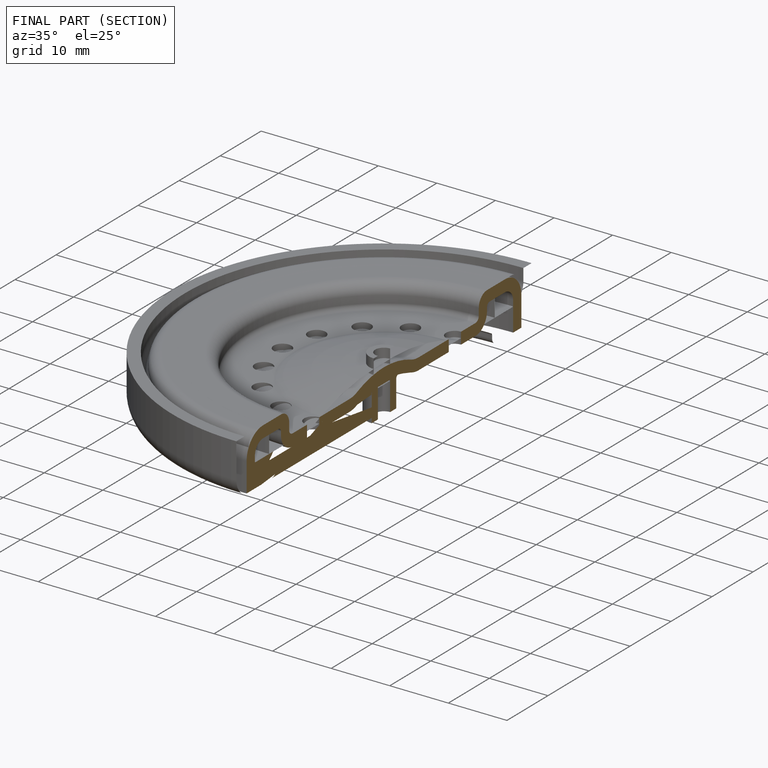
[diagram: finished part — half-section view (interior)]
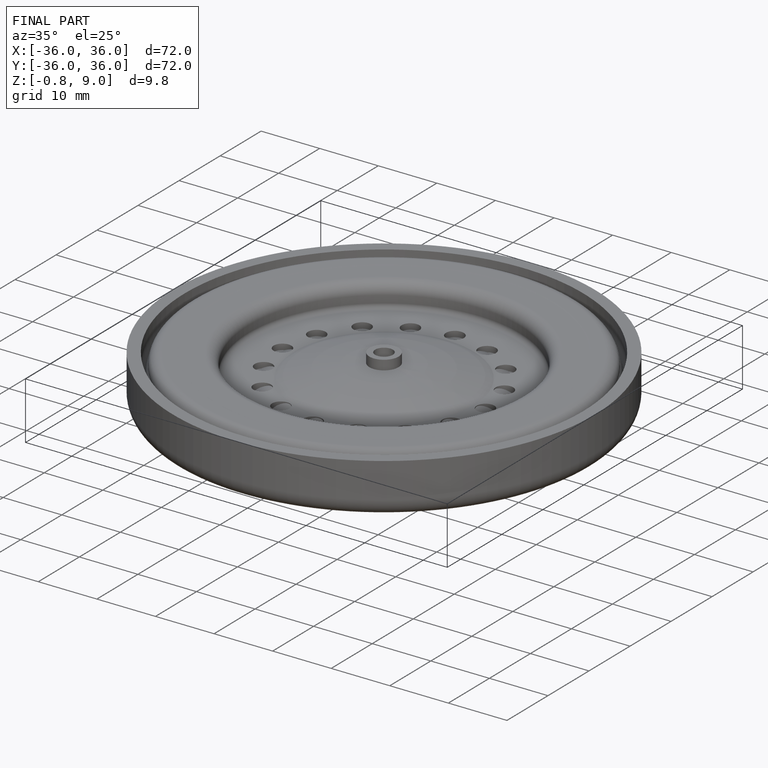
[diagram: finished part — iso view with bounding-box wireframe]
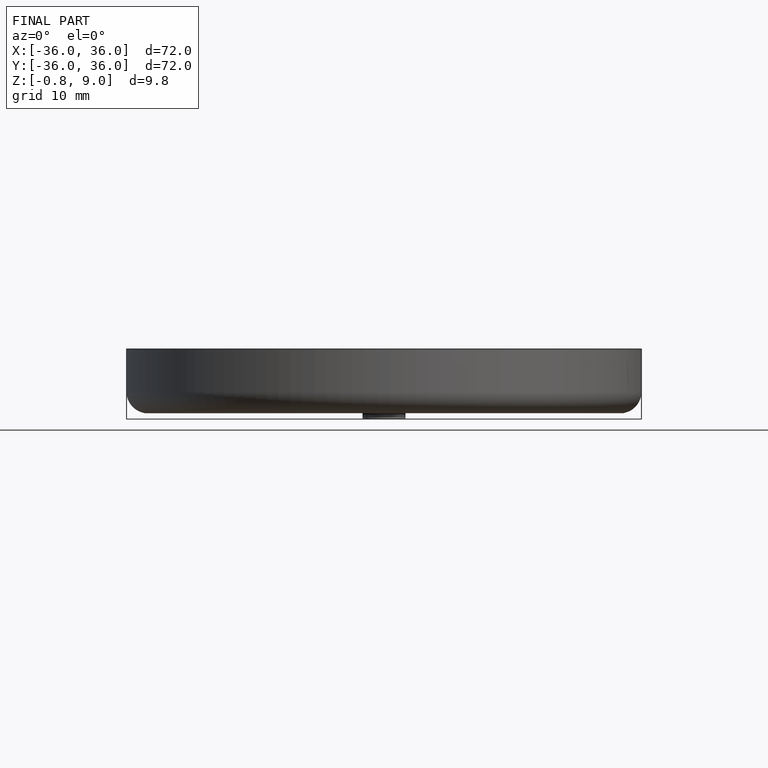
[diagram: finished part — front view with bounding-box wireframe]
